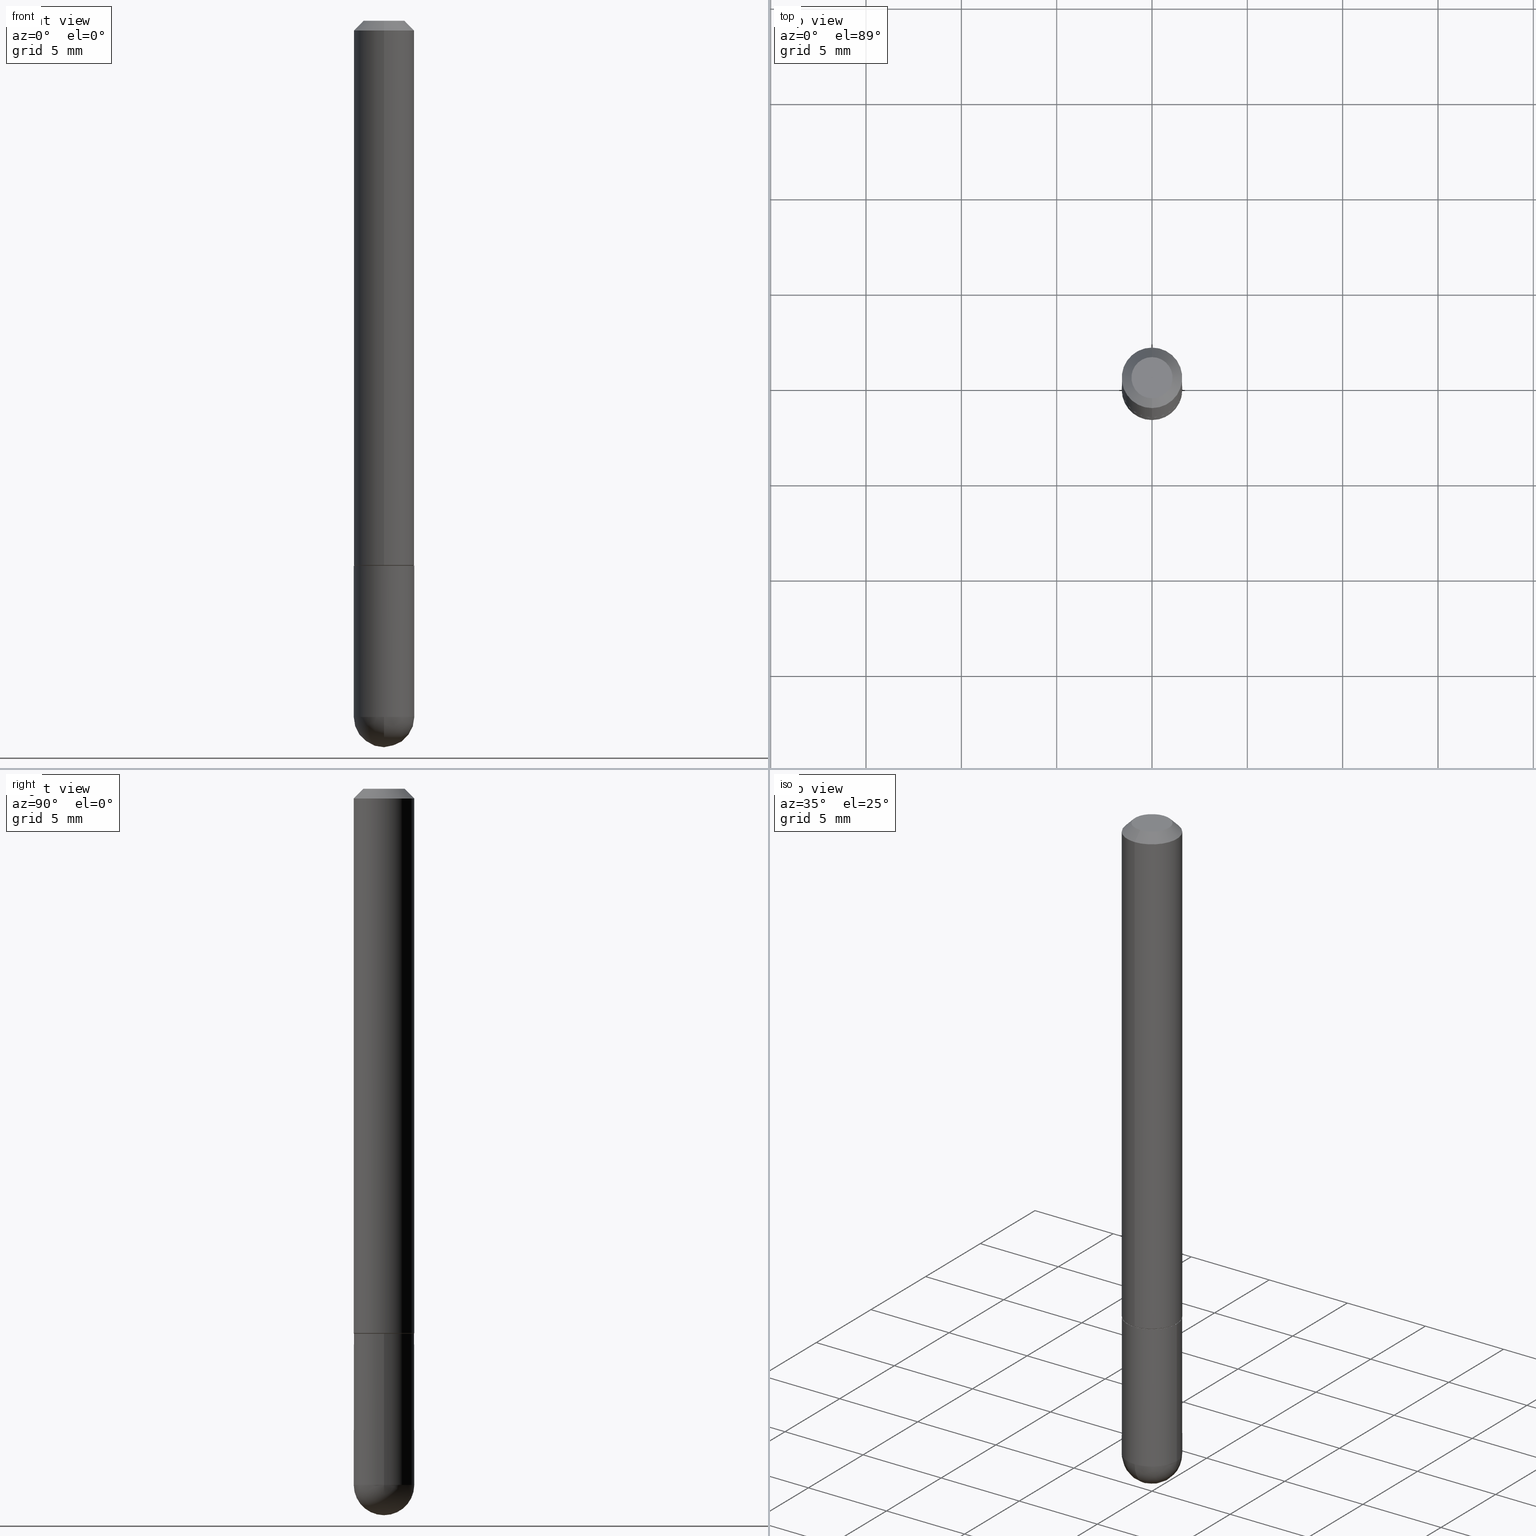
[diagram: canonical four-view strip — front | top / right | iso, engineering-drawing reading convention]
A machine part, canonical four-view strip (front | top / right | iso — engineering-drawing reading convention). The complete STEP part file that produces these views, byte-faithful:
ISO-10303-21;
HEADER;
FILE_DESCRIPTION (( 'STEP AP203' ),
    '1' );
FILE_NAME ('34669.STEP',
    '2024-02-21T18:15:36',
    ( '' ),
    ( '' ),
    'SwSTEP 2.0',
    'SolidWorks 2023',
    '' );
FILE_SCHEMA (( 'CONFIG_CONTROL_DESIGN' ));
ENDSEC;

DATA;
#1 = ADVANCED_FACE ( 'NONE', ( #252 ), #206, .T. ) ;
#2 = ORIENTED_EDGE ( 'NONE', *, *, #289, .T. ) ;
#3 = AXIS2_PLACEMENT_3D ( 'NONE', #267, #389, #45 ) ;
#4 = CC_DESIGN_PERSON_AND_ORGANIZATION_ASSIGNMENT ( #307, #364, ( #95 ) ) ;
#5 = VERTEX_POINT ( 'NONE', #353 ) ;
#6 = ORIENTED_EDGE ( 'NONE', *, *, #407, .F. ) ;
#7 = VERTEX_POINT ( 'NONE', #224 ) ;
#8 = ORIENTED_EDGE ( 'NONE', *, *, #73, .T. ) ;
#9 = AXIS2_PLACEMENT_3D ( 'NONE', #405, #217, #347 ) ;
#10 = CIRCLE ( 'NONE', #246, 0.06250000000000031919 ) ;
#11 = DIRECTION ( 'NONE',  ( -2.445468806185136597E-29, 3.491481338843145583E-15, 1.000000000000000000 ) ) ;
#12 = CARTESIAN_POINT ( 'NONE',  ( 4.931764679516106020E-31, -6.924495993801153083E-17, -0.02000000000000006981 ) ) ;
#13 = DIRECTION ( 'NONE',  ( -2.465882339758044742E-29, 3.462247996900564881E-15, 1.000000000000000000 ) ) ;
#14 = ADVANCED_FACE ( 'NONE', ( #67 ), #28, .T. ) ;
#15 = DIRECTION ( 'NONE',  ( -2.465882339758044742E-29, 3.462247996900564881E-15, 1.000000000000000000 ) ) ;
#16 = DIRECTION ( 'NONE',  ( 1.000000000000000000, 0.000000000000000000, 0.000000000000000000 ) ) ;
#17 = CYLINDRICAL_SURFACE ( 'NONE', #245, 0.06249999999999997918 ) ;
#18 = FACE_OUTER_BOUND ( 'NONE', #355, .T. ) ;
#19 = CC_DESIGN_DATE_AND_TIME_ASSIGNMENT ( #278, #154, ( #82 ) ) ;
#20 = CARTESIAN_POINT ( 'NONE',  ( 0.000000000000000000, 0.000000000000000000, 0.000000000000000000 ) ) ;
#21 = CARTESIAN_POINT ( 'NONE',  ( 0.06249999999999997918, -4.364351673553915708E-16, 3.047610484872459170E-30 ) ) ;
#22 = DIRECTION ( 'NONE',  ( 4.937700262164544887E-15, 0.7071067811865446862, -0.7071067811865503483 ) ) ;
#23 = DIRECTION ( 'NONE',  ( 1.000000000000000000, -6.982962677686269077E-15, 0.000000000000000000 ) ) ;
#24 = DATE_AND_TIME ( #150, #351 ) ;
#25 = EDGE_CURVE ( 'NONE', #256, #46, #409, .T. ) ;
#26 = FACE_OUTER_BOUND ( 'NONE', #259, .T. ) ;
#27 = DATE_AND_TIME ( #92, #213 ) ;
#28 = CONICAL_SURFACE ( 'NONE', #376, 0.06149999999999997830, 0.7853981633974482790 ) ;
#29 = DATE_AND_TIME ( #218, #285 ) ;
#30 = ADVANCED_FACE ( 'NONE', ( #211 ), #17, .T. ) ;
#31 = DIRECTION ( 'NONE',  ( 1.000000000000000000, -6.982962677686268288E-15, 0.000000000000000000 ) ) ;
#32 = CARTESIAN_POINT ( 'NONE',  ( 4.364351673554260835E-16, 0.06249999999999487910, -1.437500000000000444 ) ) ;
#33 = CIRCLE ( 'NONE', #3, 0.06250000000000001388 ) ;
#34 = CARTESIAN_POINT ( 'NONE',  ( 4.931764679516106020E-31, -6.924495993801153083E-17, -0.02000000000000006981 ) ) ;
#35 = EDGE_CURVE ( 'NONE', #293, #195, #161, .T. ) ;
#36 = EDGE_LOOP ( 'NONE', ( #78, #170, #200, #322 ) ) ;
#37 = CC_DESIGN_DATE_AND_TIME_ASSIGNMENT ( #160, #130, ( #383 ) ) ;
#38 = ORIENTED_EDGE ( 'NONE', *, *, #162, .F. ) ;
#39 = VERTEX_POINT ( 'NONE', #344 ) ;
#40 = PRODUCT ( '34669', '34669', '', ( #396 ) ) ;
#41 = AXIS2_PLACEMENT_3D ( 'NONE', #337, #15, #388 ) ;
#42 = ORIENTED_EDGE ( 'NONE', *, *, #385, .T. ) ;
#43 = ORIENTED_EDGE ( 'NONE', *, *, #73, .F. ) ;
#44 = ORIENTED_EDGE ( 'NONE', *, *, #180, .T. ) ;
#45 = DIRECTION ( 'NONE',  ( 1.000000000000000000, -6.982962677686269077E-15, 0.000000000000000000 ) ) ;
#46 = VERTEX_POINT ( 'NONE', #88 ) ;
#47 = CARTESIAN_POINT ( 'NONE',  ( 0.000000000000000000, 0.000000000000000000, 0.000000000000000000 ) ) ;
#48 = AXIS2_PLACEMENT_3D ( 'NONE', #282, #317, #287 ) ;
#49 = CARTESIAN_POINT ( 'NONE',  ( 4.405364961712898701E-16, 0.06149999999999608558, -1.125000000000000666 ) ) ;
#50 = DIRECTION ( 'NONE',  ( -2.445468806185136597E-29, 3.491481338843145583E-15, 1.000000000000000000 ) ) ;
#51 = EDGE_CURVE ( 'NONE', #46, #256, #403, .T. ) ;
#52 = LINE ( 'NONE', #59, #371 ) ;
#53 =( NAMED_UNIT ( * ) PLANE_ANGLE_UNIT ( ) SI_UNIT ( $, .RADIAN. ) );
#54 = DIRECTION ( 'NONE',  ( 1.000000000000000000, -6.982962677686267499E-15, 4.876176775795936353E-29 ) ) ;
#55 = FACE_OUTER_BOUND ( 'NONE', #354, .T. ) ;
#56 = DIRECTION ( 'NONE',  ( -2.445468806185136597E-29, 3.491481338843145583E-15, 1.000000000000000000 ) ) ;
#57 = PERSON_AND_ORGANIZATION ( #99, #121 ) ;
#58 = AXIS2_PLACEMENT_3D ( 'NONE', #279, #209, #85 ) ;
#59 = CARTESIAN_POINT ( 'NONE',  ( 4.364351673553917187E-16, 0.06249999999999988204, -0.02000000000000028491 ) ) ;
#60 = DIRECTION ( 'NONE',  ( -2.465882339758044742E-29, 3.462247996900564881E-15, 1.000000000000000000 ) ) ;
#61 = DIRECTION ( 'NONE',  ( 6.982962677686265922E-15, 1.000000000000000000, -4.370956789862798273E-15 ) ) ;
#62 = CALENDAR_DATE ( 2024, 21, 2 ) ;
#63 = FACE_OUTER_BOUND ( 'NONE', #253, .T. ) ;
#64 = VECTOR ( 'NONE', #240, 39.37007874015748143 ) ;
#65 = CIRCLE ( 'NONE', #301, 0.06249999999999995143 ) ;
#66 = EDGE_CURVE ( 'NONE', #5, #375, #52, .T. ) ;
#67 = FACE_OUTER_BOUND ( 'NONE', #333, .T. ) ;
#68 = ORIENTED_EDGE ( 'NONE', *, *, #298, .F. ) ;
#69 = VERTEX_POINT ( 'NONE', #394 ) ;
#70 = UNCERTAINTY_MEASURE_WITH_UNIT (LENGTH_MEASURE( 1.000000000000000082E-05 ), #237, 'distance_accuracy_value', 'NONE');
#71 = ORIENTED_EDGE ( 'NONE', *, *, #230, .T. ) ;
#72 = ORIENTED_EDGE ( 'NONE', *, *, #385, .F. ) ;
#73 = EDGE_CURVE ( 'NONE', #39, #303, #33, .T. ) ;
#74 = AXIS2_PLACEMENT_3D ( 'NONE', #47, #179, #141 ) ;
#75 = ORIENTED_EDGE ( 'NONE', *, *, #66, .F. ) ;
#76 = ORIENTED_EDGE ( 'NONE', *, *, #51, .T. ) ;
#77 = DIRECTION ( 'NONE',  ( -6.982962677686265922E-15, -1.000000000000000000, 3.462247996900564881E-15 ) ) ;
#78 = ORIENTED_EDGE ( 'NONE', *, *, #230, .F. ) ;
#79 = ADVANCED_FACE ( 'NONE', ( #55 ), #178, .F. ) ;
#80 = VECTOR ( 'NONE', #338, 39.37007874015748143 ) ;
#81 = DIRECTION ( 'NONE',  ( -2.445468806185136597E-29, 3.491481338843145583E-15, 1.000000000000000000 ) ) ;
#82 = PRODUCT_DEFINITION ( 'UNKNOWN', '', #95, #258 ) ;
#83 = CARTESIAN_POINT ( 'NONE',  ( 4.440892098500769143E-16, 0.06249999999999615585, -1.124000000000000554 ) ) ;
#84 = SECURITY_CLASSIFICATION_LEVEL ( 'unclassified' ) ;
#85 = DIRECTION ( 'NONE',  ( 1.000000000000000000, -6.982962677686268288E-15, 0.000000000000000000 ) ) ;
#86 = DIRECTION ( 'NONE',  ( -1.000000000000000000, 6.982962677686265922E-15, -4.883557194083112901E-29 ) ) ;
#87 = CARTESIAN_POINT ( 'NONE',  ( 0.000000000000000000, 0.000000000000000000, 0.000000000000000000 ) ) ;
#88 = CARTESIAN_POINT ( 'NONE',  ( -4.294522046776775027E-16, -0.06150000000000387101, -1.125000000000000222 ) ) ;
#89 = CARTESIAN_POINT ( 'NONE',  ( -0.06249999999999995143, -4.029371255542719745E-15, -1.437500000000000222 ) ) ;
#90 = CLOSED_SHELL ( 'NONE', ( #201, #166, #214, #249, #30 ) ) ;
#91 = DIRECTION ( 'NONE',  ( -1.000000000000000000, 6.982962677686265922E-15, -4.876176775795935793E-29 ) ) ;
#92 = CALENDAR_DATE ( 2024, 21, 2 ) ;
#93 = FACE_OUTER_BOUND ( 'NONE', #167, .T. ) ;
#94 = EDGE_CURVE ( 'NONE', #132, #299, #393, .T. ) ;
#95 = PRODUCT_DEFINITION_FORMATION_WITH_SPECIFIED_SOURCE ( 'ANY', '', #40, .NOT_KNOWN. ) ;
#96 = COORDINATED_UNIVERSAL_TIME_OFFSET ( 5, 0, .BEHIND. ) ;
#97 = PERSON_AND_ORGANIZATION ( #99, #121 ) ;
#98 = EDGE_CURVE ( 'NONE', #199, #39, #272, .T. ) ;
#99 = PERSON ( 'UNSPECIFIED', 'UNSPECIFIED', 'UNSPECIFIED', ('UNSPECIFIED'), ('UNSPECIFIED'), ('UNSPECIFIED') ) ;
#100 = DIRECTION ( 'NONE',  ( 6.982962677686265922E-15, 1.000000000000000000, -3.483106191921938315E-15 ) ) ;
#101 = AXIS2_PLACEMENT_3D ( 'NONE', #146, #367, #143 ) ;
#102 = ORIENTED_EDGE ( 'NONE', *, *, #162, .T. ) ;
#103 = DIMENSIONAL_EXPONENTS ( 1.000000000000000000, 0.000000000000000000, 0.000000000000000000, 0.000000000000000000, 0.000000000000000000, 0.000000000000000000, 0.000000000000000000 ) ;
#104 = ORIENTED_EDGE ( 'NONE', *, *, #25, .T. ) ;
#105 = EDGE_CURVE ( 'NONE', #7, #132, #191, .T. ) ;
#106 = ORIENTED_EDGE ( 'NONE', *, *, #35, .F. ) ;
#107 = ORIENTED_EDGE ( 'NONE', *, *, #180, .F. ) ;
#108 = AXIS2_PLACEMENT_3D ( 'NONE', #316, #309, #91 ) ;
#109 = ORIENTED_EDGE ( 'NONE', *, *, #94, .T. ) ;
#110 = MANIFOLD_SOLID_BREP ( 'Body-Move/Copy2[1]', #90 ) ;
#111 = ORIENTED_EDGE ( 'NONE', *, *, #254, .T. ) ;
#112 = DIRECTION ( 'NONE',  ( 1.000000000000000000, -6.982962677686268288E-15, 0.000000000000000000 ) ) ;
#113 = CARTESIAN_POINT ( 'NONE',  ( 3.184241630977248732E-29, -5.493186792727072638E-15, -1.437500000000000222 ) ) ;
#114 = CARTESIAN_POINT ( 'NONE',  ( -3.653340806039298836E-45, 5.129511527685368926E-31, 1.481555201209547296E-16 ) ) ;
#115 = EDGE_CURVE ( 'NONE', #69, #375, #255, .T. ) ;
#116 = CARTESIAN_POINT ( 'NONE',  ( 2.771651749888043021E-29, -3.891566748516236296E-15, -1.124000000000000332 ) ) ;
#117 = LENGTH_MEASURE_WITH_UNIT ( LENGTH_MEASURE( 0.02539999999999999897 ), #390 );
#118 = CIRCLE ( 'NONE', #350, 0.06249999999999995143 ) ;
#119 = DIRECTION ( 'NONE',  ( -6.982962677686265922E-15, -1.000000000000000000, 3.462247996900564881E-15 ) ) ;
#120 = COORDINATED_UNIVERSAL_TIME_OFFSET ( 5, 0, .BEHIND. ) ;
#121 = ORGANIZATION ( 'UNSPECIFIED', 'UNSPECIFIED', '' ) ;
#122 = LINE ( 'NONE', #399, #260 ) ;
#123 = CARTESIAN_POINT ( 'NONE',  ( 3.515361408891134418E-29, -5.019004424587023131E-15, -1.437500000000000222 ) ) ;
#124 = FACE_OUTER_BOUND ( 'NONE', #225, .T. ) ;
#125 = CARTESIAN_POINT ( 'NONE',  ( 0.06249999999999995143, -4.909895632748173241E-15, -1.437500000000000222 ) ) ;
#126 = SPHERICAL_SURFACE ( 'NONE', #190, 0.06250000000000031919 ) ;
#127 = COORDINATED_UNIVERSAL_TIME_OFFSET ( 5, 0, .BEHIND. ) ;
#128 = AXIS2_PLACEMENT_3D ( 'NONE', #294, #378, #302 ) ;
#129 =( GEOMETRIC_REPRESENTATION_CONTEXT ( 3 ) GLOBAL_UNCERTAINTY_ASSIGNED_CONTEXT ( ( #70 ) ) GLOBAL_UNIT_ASSIGNED_CONTEXT ( ( #237, #53, #348 ) ) REPRESENTATION_CONTEXT ( 'NONE', 'WORKASPACE' ) );
#130 = DATE_TIME_ROLE ( 'classification_date' ) ;
#131 = ORIENTED_EDGE ( 'NONE', *, *, #220, .T. ) ;
#132 = VERTEX_POINT ( 'NONE', #125 ) ;
#133 = CIRCLE ( 'NONE', #9, 0.06250000000000031919 ) ;
#134 = ORIENTED_EDGE ( 'NONE', *, *, #115, .T. ) ;
#135 = ADVANCED_FACE ( 'NONE', ( #173 ), #244, .T. ) ;
#136 = ORIENTED_EDGE ( 'NONE', *, *, #147, .T. ) ;
#137 = EDGE_LOOP ( 'NONE', ( #227, #44, #164, #332, #43 ) ) ;
#138 = ORIENTED_EDGE ( 'NONE', *, *, #115, .F. ) ;
#139 = APPROVAL_PERSON_ORGANIZATION ( #392, #398, #241 ) ;
#140 = EDGE_CURVE ( 'NONE', #195, #69, #205, .T. ) ;
#141 = DIRECTION ( 'NONE',  ( -6.982962677686265922E-15, -1.000000000000000000, 3.462247996900564881E-15 ) ) ;
#142 = DIRECTION ( 'NONE',  ( -6.982962677686265922E-15, -1.000000000000000000, 4.442029257990673709E-15 ) ) ;
#143 = DIRECTION ( 'NONE',  ( 6.982962677686265922E-15, 1.000000000000000000, -4.370956789862798273E-15 ) ) ;
#144 = APPLICATION_PROTOCOL_DEFINITION ( 'international standard', 'config_control_design', 1994, #320 ) ;
#145 = DIRECTION ( 'NONE',  ( -2.445468806185136597E-29, 3.491481338843145583E-15, 1.000000000000000000 ) ) ;
#146 = CARTESIAN_POINT ( 'NONE',  ( 3.184241630977248732E-29, -5.493186792727072638E-15, -1.437500000000000222 ) ) ;
#147 = EDGE_CURVE ( 'NONE', #299, #199, #222, .T. ) ;
#148 = DIRECTION ( 'NONE',  ( -2.465882339758044742E-29, 3.462247996900564881E-15, 1.000000000000000000 ) ) ;
#149 = CARTESIAN_POINT ( 'NONE',  ( -4.287811248607198352E-16, -0.06250000000000001388, -0.01999999999999985123 ) ) ;
#150 = CALENDAR_DATE ( 2024, 21, 2 ) ;
#151 = DIRECTION ( 'NONE',  ( -2.465882339758044742E-29, 3.462247996900564881E-15, 1.000000000000000000 ) ) ;
#152 = CARTESIAN_POINT ( 'NONE',  ( -4.294522046776775027E-16, -0.06150000000000387101, -1.125000000000000222 ) ) ;
#153 = DIRECTION ( 'NONE',  ( 2.465882339758044742E-29, -3.462247996900564881E-15, -1.000000000000000000 ) ) ;
#154 = DATE_TIME_ROLE ( 'creation_date' ) ;
#155 = ADVANCED_FACE ( 'NONE', ( #93 ), #290, .F. ) ;
#156 = CARTESIAN_POINT ( 'NONE',  ( 2.774117632227801036E-29, -3.895028996513137661E-15, -1.125000000000000444 ) ) ;
#157 = PERSON_AND_ORGANIZATION_ROLE ( 'creator' ) ;
#158 = AXIS2_PLACEMENT_3D ( 'NONE', #34, #374, #100 ) ;
#159 = APPROVAL_PERSON_ORGANIZATION ( #239, #215, #281 ) ;
#160 = DATE_AND_TIME ( #193, #292 ) ;
#161 = CIRCLE ( 'NONE', #382, 0.06250000000000005551 ) ;
#162 = EDGE_CURVE ( 'NONE', #358, #299, #133, .T. ) ;
#163 = AXIS2_PLACEMENT_3D ( 'NONE', #386, #11, #23 ) ;
#164 = ORIENTED_EDGE ( 'NONE', *, *, #105, .T. ) ;
#165 = DIRECTION ( 'NONE',  ( -6.982962677686265922E-15, -1.000000000000000000, 4.442029257990673709E-15 ) ) ;
#166 = ADVANCED_FACE ( 'NONE', ( #63 ), #181, .T. ) ;
#167 = EDGE_LOOP ( 'NONE', ( #295, #171 ) ) ;
#168 = VECTOR ( 'NONE', #369, 39.37007874015748143 ) ;
#169 = CIRCLE ( 'NONE', #352, 0.06250000000000005551 ) ;
#170 = ORIENTED_EDGE ( 'NONE', *, *, #35, .T. ) ;
#171 = ORIENTED_EDGE ( 'NONE', *, *, #25, .F. ) ;
#172 = ORIENTED_EDGE ( 'NONE', *, *, #298, .T. ) ;
#173 = FACE_OUTER_BOUND ( 'NONE', #359, .T. ) ;
#174 = AXIS2_PLACEMENT_3D ( 'NONE', #87, #243, #16 ) ;
#175 = CARTESIAN_POINT ( 'NONE',  ( 3.339755826017506129E-29, -5.707577355157435366E-15, -1.500000000000000444 ) ) ;
#176 = CARTESIAN_POINT ( 'NONE',  ( 0.000000000000000000, 0.000000000000000000, 0.000000000000000000 ) ) ;
#177 = APPROVAL_STATUS ( 'not_yet_approved' ) ;
#178 = PLANE ( 'NONE',  #235 ) ;
#179 = DIRECTION ( 'NONE',  ( -2.465882339758044742E-29, 3.462247996900564881E-15, 1.000000000000000000 ) ) ;
#180 = EDGE_CURVE ( 'NONE', #199, #7, #65, .T. ) ;
#181 = SPHERICAL_SURFACE ( 'NONE', #101, 0.06250000000000031919 ) ;
#182 = PERSON_AND_ORGANIZATION ( #99, #121 ) ;
#183 = CARTESIAN_POINT ( 'NONE',  ( 4.931764679516106020E-31, -6.924495993801153083E-17, -0.02000000000000006981 ) ) ;
#184 = CARTESIAN_POINT ( 'NONE',  ( 2.771651749888043021E-29, -3.891566748516236296E-15, -1.124000000000000332 ) ) ;
#185 = DIRECTION ( 'NONE',  ( 1.000000000000000000, -6.982962677686268288E-15, 0.000000000000000000 ) ) ;
#186 = CC_DESIGN_PERSON_AND_ORGANIZATION_ASSIGNMENT ( #270, #157, ( #95 ) ) ;
#187 = CARTESIAN_POINT ( 'NONE',  ( 2.967759138016645800E-16, 0.04249999999999975325, -7.306777980779578081E-17 ) ) ;
#188 = CARTESIAN_POINT ( 'NONE',  ( -4.364351673553642565E-16, -0.06250000000000394129, -1.124000000000000110 ) ) ;
#189 = EDGE_CURVE ( 'NONE', #256, #293, #306, .T. ) ;
#190 = AXIS2_PLACEMENT_3D ( 'NONE', #266, #86, #61 ) ;
#191 = CIRCLE ( 'NONE', #58, 0.06249999999999995143 ) ;
#192 = ORIENTED_EDGE ( 'NONE', *, *, #365, .F. ) ;
#193 = CALENDAR_DATE ( 2024, 21, 2 ) ;
#194 = DIRECTION ( 'NONE',  ( -2.465882339758044742E-29, 3.462247996900564881E-15, 1.000000000000000000 ) ) ;
#195 = VERTEX_POINT ( 'NONE', #188 ) ;
#196 = ORIENTED_EDGE ( 'NONE', *, *, #365, .T. ) ;
#197 = CC_DESIGN_PERSON_AND_ORGANIZATION_ASSIGNMENT ( #208, #373, ( #383 ) ) ;
#198 = CIRCLE ( 'NONE', #163, 0.06250000000000001388 ) ;
#199 = VERTEX_POINT ( 'NONE', #89 ) ;
#200 = ORIENTED_EDGE ( 'NONE', *, *, #140, .T. ) ;
#201 = ADVANCED_FACE ( 'NONE', ( #238 ), #361, .T. ) ;
#202 = CARTESIAN_POINT ( 'NONE',  ( -4.364351673553916201E-16, -0.06250000000000000000, 2.163904998062853051E-16 ) ) ;
#203 = ORIENTED_EDGE ( 'NONE', *, *, #147, .F. ) ;
#204 = FACE_OUTER_BOUND ( 'NONE', #36, .T. ) ;
#205 = LINE ( 'NONE', #202, #80 ) ;
#206 = CONICAL_SURFACE ( 'NONE', #158, 0.06249999999999995143, 0.7853981633974477239 ) ;
#207 = APPROVAL_DATE_TIME ( #27, #215 ) ;
#208 = PERSON_AND_ORGANIZATION ( #99, #121 ) ;
#209 = DIRECTION ( 'NONE',  ( -2.445468806185136597E-29, 3.491481338843145583E-15, 1.000000000000000000 ) ) ;
#210 = FACE_OUTER_BOUND ( 'NONE', #229, .T. ) ;
#211 = FACE_OUTER_BOUND ( 'NONE', #137, .T. ) ;
#212 = AXIS2_PLACEMENT_3D ( 'NONE', #232, #360, #77 ) ;
#213 = LOCAL_TIME ( 13, 15, 36.00000000000000000, #127 ) ;
#214 = ADVANCED_FACE ( 'NONE', ( #124 ), #126, .T. ) ;
#215 = APPROVAL ( #345, 'UNSPECIFIED' ) ;
#216 = APPROVAL_DATE_TIME ( #29, #331 ) ;
#217 = DIRECTION ( 'NONE',  ( 1.000000000000000000, -6.982962677686265922E-15, 4.883557194083112340E-29 ) ) ;
#218 = CALENDAR_DATE ( 2024, 21, 2 ) ;
#219 = CIRCLE ( 'NONE', #41, 0.04249999999999975325 ) ;
#220 = EDGE_CURVE ( 'NONE', #375, #69, #118, .T. ) ;
#221 = COORDINATED_UNIVERSAL_TIME_OFFSET ( 5, 0, .BEHIND. ) ;
#222 = CIRCLE ( 'NONE', #291, 0.06249999999999995143 ) ;
#223 = APPROVAL_PERSON_ORGANIZATION ( #97, #331, #248 ) ;
#224 = CARTESIAN_POINT ( 'NONE',  ( -4.440892098500299770E-16, -0.06250000000000539846, -1.437500000000000000 ) ) ;
#225 = EDGE_LOOP ( 'NONE', ( #6, #102, #261, #321 ) ) ;
#226 = ORIENTED_EDGE ( 'NONE', *, *, #318, .F. ) ;
#227 = ORIENTED_EDGE ( 'NONE', *, *, #98, .F. ) ;
#228 = AXIS2_PLACEMENT_3D ( 'NONE', #363, #13, #142 ) ;
#229 = EDGE_LOOP ( 'NONE', ( #380, #8 ) ) ;
#230 = EDGE_CURVE ( 'NONE', #293, #375, #122, .T. ) ;
#231 = CARTESIAN_POINT ( 'NONE',  ( -3.601761448830040600E-16, -0.04249999999999975325, 2.953010599892278506E-16 ) ) ;
#232 = CARTESIAN_POINT ( 'NONE',  ( 0.000000000000000000, 0.000000000000000000, 0.000000000000000000 ) ) ;
#233 = CARTESIAN_POINT ( 'NONE',  ( 4.931764679516106020E-31, -6.924495993801153083E-17, -0.02000000000000006981 ) ) ;
#234 = EDGE_CURVE ( 'NONE', #132, #303, #340, .T. ) ;
#235 = AXIS2_PLACEMENT_3D ( 'NONE', #187, #397, #308 ) ;
#236 = VECTOR ( 'NONE', #366, 39.37007874015748854 ) ;
#237 =( CONVERSION_BASED_UNIT ( 'INCH', #117 ) LENGTH_UNIT ( ) NAMED_UNIT ( #103 ) );
#238 = FACE_OUTER_BOUND ( 'NONE', #325, .T. ) ;
#239 = PERSON_AND_ORGANIZATION ( #99, #121 ) ;
#240 = DIRECTION ( 'NONE',  ( -2.445468806185136877E-29, 3.491481338843145188E-15, 1.000000000000000000 ) ) ;
#241 = APPROVAL_ROLE ( '' ) ;
#242 = DIRECTION ( 'NONE',  ( -6.982962677686265922E-15, -1.000000000000000000, 3.483106191921938315E-15 ) ) ;
#243 = DIRECTION ( 'NONE',  ( 0.000000000000000000, 0.000000000000000000, 1.000000000000000000 ) ) ;
#244 = CYLINDRICAL_SURFACE ( 'NONE', #212, 0.06250000000000000000 ) ;
#245 = AXIS2_PLACEMENT_3D ( 'NONE', #20, #50, #305 ) ;
#246 = AXIS2_PLACEMENT_3D ( 'NONE', #113, #339, #268 ) ;
#247 = COORDINATED_UNIVERSAL_TIME_OFFSET ( 5, 0, .BEHIND. ) ;
#248 = APPROVAL_ROLE ( '' ) ;
#249 = ADVANCED_FACE ( 'NONE', ( #210 ), #280, .F. ) ;
#250 = CONICAL_SURFACE ( 'NONE', #310, 0.06249999999999995143, 0.7853981633974477239 ) ;
#251 = CC_DESIGN_APPROVAL ( #331, ( #383 ) ) ;
#252 = FACE_OUTER_BOUND ( 'NONE', #263, .T. ) ;
#253 = EDGE_LOOP ( 'NONE', ( #38, #300, #107, #203 ) ) ;
#254 = EDGE_CURVE ( 'NONE', #384, #5, #219, .T. ) ;
#255 = CIRCLE ( 'NONE', #319, 0.06249999999999995143 ) ;
#256 = VERTEX_POINT ( 'NONE', #49 ) ;
#257 = ORIENTED_EDGE ( 'NONE', *, *, #66, .T. ) ;
#258 = DESIGN_CONTEXT ( 'detailed design', #329, 'design' ) ;
#259 = EDGE_LOOP ( 'NONE', ( #76, #412, #72, #192 ) ) ;
#260 = VECTOR ( 'NONE', #304, 39.37007874015748143 ) ;
#261 = ORIENTED_EDGE ( 'NONE', *, *, #94, .F. ) ;
#262 = CC_DESIGN_APPROVAL ( #398, ( #82 ) ) ;
#263 = EDGE_LOOP ( 'NONE', ( #68, #323, #257, #131 ) ) ;
#264 = CARTESIAN_POINT ( 'NONE',  ( 4.364351673553917187E-16, 0.06249999999999988204, -0.02000000000000028491 ) ) ;
#265 = ADVANCED_FACE ( 'NONE', ( #18 ), #250, .T. ) ;
#266 = CARTESIAN_POINT ( 'NONE',  ( 3.184241630977248732E-29, -5.493186792727072638E-15, -1.437500000000000222 ) ) ;
#267 = CARTESIAN_POINT ( 'NONE',  ( 2.751152406958279792E-29, -3.927916506198540013E-15, -1.125000000000000444 ) ) ;
#268 = DIRECTION ( 'NONE',  ( -7.105427357601001859E-15, -1.000000000000000000, 0.000000000000000000 ) ) ;
#269 = DIRECTION ( 'NONE',  ( 6.982962677686265922E-15, 1.000000000000000000, -3.483106191921938315E-15 ) ) ;
#270 = PERSON_AND_ORGANIZATION ( #99, #121 ) ;
#271 = CC_DESIGN_PERSON_AND_ORGANIZATION_ASSIGNMENT ( #57, #286, ( #82 ) ) ;
#272 = LINE ( 'NONE', #314, #64 ) ;
#273 = AXIS2_PLACEMENT_3D ( 'NONE', #123, #145, #112 ) ;
#274 = AXIS2_PLACEMENT_3D ( 'NONE', #114, #391, #119 ) ;
#275 = DIRECTION ( 'NONE',  ( 5.024295867788060812E-15, 0.7071067811865499042, 0.7071067811865450192 ) ) ;
#276 = DIRECTION ( 'NONE',  ( -6.982962677686265133E-15, -1.000000000000000000, 4.370956789862817205E-15 ) ) ;
#277 = CARTESIAN_POINT ( 'NONE',  ( 4.369837824924891195E-16, 0.06149999999999608558, -1.125000000000000666 ) ) ;
#278 = DATE_AND_TIME ( #62, #377 ) ;
#279 = CARTESIAN_POINT ( 'NONE',  ( 3.515361408891134418E-29, -5.019004424587023131E-15, -1.437500000000000222 ) ) ;
#280 = PLANE ( 'NONE',  #108 ) ;
#281 = APPROVAL_ROLE ( '' ) ;
#282 = CARTESIAN_POINT ( 'NONE',  ( 2.774117632227801036E-29, -3.895028996513137661E-15, -1.125000000000000444 ) ) ;
#283 = ADVANCED_BREP_SHAPE_REPRESENTATION ( '34669', ( #110, #372, #174 ), #129 ) ;
#284 = CLOSED_SHELL ( 'NONE', ( #313, #135, #265, #1, #326, #14, #155, #79 ) ) ;
#285 = LOCAL_TIME ( 13, 15, 36.00000000000000000, #221 ) ;
#286 = PERSON_AND_ORGANIZATION_ROLE ( 'creator' ) ;
#287 = DIRECTION ( 'NONE',  ( -6.982962677686265922E-15, -1.000000000000000000, 3.462247996900565276E-15 ) ) ;
#288 = APPROVAL_STATUS ( 'not_yet_approved' ) ;
#289 = EDGE_CURVE ( 'NONE', #5, #384, #356, .T. ) ;
#290 = PLANE ( 'NONE',  #48 ) ;
#291 = AXIS2_PLACEMENT_3D ( 'NONE', #334, #406, #31 ) ;
#292 = LOCAL_TIME ( 13, 15, 36.00000000000000000, #96 ) ;
#293 = VERTEX_POINT ( 'NONE', #83 ) ;
#294 = CARTESIAN_POINT ( 'NONE',  ( 2.774117632227801036E-29, -3.895028996513137661E-15, -1.125000000000000444 ) ) ;
#295 = ORIENTED_EDGE ( 'NONE', *, *, #51, .F. ) ;
#296 = AXIS2_PLACEMENT_3D ( 'NONE', #176, #81, #54 ) ;
#297 = ORIENTED_EDGE ( 'NONE', *, *, #189, .F. ) ;
#298 = EDGE_CURVE ( 'NONE', #384, #69, #343, .T. ) ;
#299 = VERTEX_POINT ( 'NONE', #32 ) ;
#300 = ORIENTED_EDGE ( 'NONE', *, *, #407, .T. ) ;
#301 = AXIS2_PLACEMENT_3D ( 'NONE', #401, #56, #185 ) ;
#302 = DIRECTION ( 'NONE',  ( -6.982962677686265922E-15, -1.000000000000000000, 4.442029257990673709E-15 ) ) ;
#303 = VERTEX_POINT ( 'NONE', #410 ) ;
#304 = DIRECTION ( 'NONE',  ( -2.465882339758044462E-29, 3.462247996900565276E-15, 1.000000000000000000 ) ) ;
#305 = DIRECTION ( 'NONE',  ( 1.000000000000000000, -6.982962677686267499E-15, 4.876176775795936353E-29 ) ) ;
#306 = LINE ( 'NONE', #277, #362 ) ;
#307 = PERSON_AND_ORGANIZATION ( #99, #121 ) ;
#308 = DIRECTION ( 'NONE',  ( 6.982962677686265922E-15, 1.000000000000000000, -3.462247996900565276E-15 ) ) ;
#309 = DIRECTION ( 'NONE',  ( 2.438088387897960049E-29, -3.491481338843145188E-15, -1.000000000000000000 ) ) ;
#310 = AXIS2_PLACEMENT_3D ( 'NONE', #12, #153, #269 ) ;
#311 = DIRECTION ( 'NONE',  ( -2.465882339758044742E-29, 3.462247996900564881E-15, 1.000000000000000000 ) ) ;
#312 = APPLICATION_PROTOCOL_DEFINITION ( 'international standard', 'config_control_design', 1994, #329 ) ;
#313 = ADVANCED_FACE ( 'NONE', ( #26 ), #357, .T. ) ;
#314 = CARTESIAN_POINT ( 'NONE',  ( -0.06249999999999997918, 4.440892098500624683E-16, -3.074334431409315413E-30 ) ) ;
#315 = DIRECTION ( 'NONE',  ( -6.982962677686265922E-15, -1.000000000000000000, 4.442029257990673709E-15 ) ) ;
#316 = CARTESIAN_POINT ( 'NONE',  ( 4.364351673554192795E-16, 0.06249999999999608646, -1.125000000000000666 ) ) ;
#317 = DIRECTION ( 'NONE',  ( -2.465882339758044182E-29, 3.462247996900565276E-15, 1.000000000000000000 ) ) ;
#318 = EDGE_CURVE ( 'NONE', #303, #39, #198, .T. ) ;
#319 = AXIS2_PLACEMENT_3D ( 'NONE', #183, #151, #400 ) ;
#320 = APPLICATION_CONTEXT ( 'configuration controlled 3d designs of mechanical parts and assemblies' ) ;
#321 = ORIENTED_EDGE ( 'NONE', *, *, #105, .F. ) ;
#322 = ORIENTED_EDGE ( 'NONE', *, *, #220, .F. ) ;
#323 = ORIENTED_EDGE ( 'NONE', *, *, #289, .F. ) ;
#324 = CARTESIAN_POINT ( 'NONE',  ( 2.774117632227801036E-29, -3.895028996513137661E-15, -1.125000000000000444 ) ) ;
#325 = EDGE_LOOP ( 'NONE', ( #136, #335, #226, #379, #109 ) ) ;
#326 = ADVANCED_FACE ( 'NONE', ( #204 ), #336, .T. ) ;
#327 = VECTOR ( 'NONE', #368, 39.37007874015748143 ) ;
#328 = CC_DESIGN_APPROVAL ( #215, ( #95 ) ) ;
#329 = APPLICATION_CONTEXT ( 'configuration controlled 3d designs of mechanical parts and assemblies' ) ;
#330 = ORIENTED_EDGE ( 'NONE', *, *, #254, .F. ) ;
#331 = APPROVAL ( #288, 'UNSPECIFIED' ) ;
#332 = ORIENTED_EDGE ( 'NONE', *, *, #234, .T. ) ;
#333 = EDGE_LOOP ( 'NONE', ( #297, #104, #196, #106 ) ) ;
#334 = CARTESIAN_POINT ( 'NONE',  ( 3.515361408891134418E-29, -5.019004424587023131E-15, -1.437500000000000222 ) ) ;
#335 = ORIENTED_EDGE ( 'NONE', *, *, #98, .T. ) ;
#336 = CYLINDRICAL_SURFACE ( 'NONE', #74, 0.06250000000000000000 ) ;
#337 = CARTESIAN_POINT ( 'NONE',  ( -3.653340806039298836E-45, 5.129511527685368926E-31, 1.481555201209547296E-16 ) ) ;
#338 = DIRECTION ( 'NONE',  ( -2.465882339758044462E-29, 3.462247996900565276E-15, 1.000000000000000000 ) ) ;
#339 = DIRECTION ( 'NONE',  ( -1.000000000000000000, 7.105427357601001070E-15, -4.926315508542082329E-29 ) ) ;
#340 = LINE ( 'NONE', #21, #168 ) ;
#341 = DIRECTION ( 'NONE',  ( -2.465882339758044742E-29, 3.462247996900564881E-15, 1.000000000000000000 ) ) ;
#342 = DIRECTION ( 'NONE',  ( -6.982962677686265133E-15, -1.000000000000000000, 4.370956789862817205E-15 ) ) ;
#343 = LINE ( 'NONE', #149, #327 ) ;
#344 = CARTESIAN_POINT ( 'NONE',  ( -0.06250000000000001388, -4.029371255542719745E-15, -1.125000000000000444 ) ) ;
#345 = APPROVAL_STATUS ( 'not_yet_approved' ) ;
#346 = CC_DESIGN_PERSON_AND_ORGANIZATION_ASSIGNMENT ( #182, #370, ( #40 ) ) ;
#347 = DIRECTION ( 'NONE',  ( 6.982962677686265922E-15, 1.000000000000000000, 0.000000000000000000 ) ) ;
#348 =( NAMED_UNIT ( * ) SI_UNIT ( $, .STERADIAN. ) SOLID_ANGLE_UNIT ( ) );
#350 = AXIS2_PLACEMENT_3D ( 'NONE', #233, #311, #242 ) ;
#349 = PRODUCT_RELATED_PRODUCT_CATEGORY ( 'detail', '', ( #40 ) ) ;
#351 = LOCAL_TIME ( 13, 15, 36.00000000000000000, #247 ) ;
#352 = AXIS2_PLACEMENT_3D ( 'NONE', #184, #341, #342 ) ;
#353 = CARTESIAN_POINT ( 'NONE',  ( 3.666055405785281740E-16, 0.04249999999999975325, 1.009980252681581685E-18 ) ) ;
#354 = EDGE_LOOP ( 'NONE', ( #2, #111 ) ) ;
#355 = EDGE_LOOP ( 'NONE', ( #330, #172, #134, #75 ) ) ;
#356 = CIRCLE ( 'NONE', #274, 0.04249999999999975325 ) ;
#357 = CONICAL_SURFACE ( 'NONE', #404, 0.06149999999999997830, 0.7853981633974482790 ) ;
#358 = VERTEX_POINT ( 'NONE', #175 ) ;
#359 = EDGE_LOOP ( 'NONE', ( #42, #71, #138, #381 ) ) ;
#360 = DIRECTION ( 'NONE',  ( -2.465882339758044742E-29, 3.462247996900564881E-15, 1.000000000000000000 ) ) ;
#361 = CYLINDRICAL_SURFACE ( 'NONE', #296, 0.06249999999999997918 ) ;
#362 = VECTOR ( 'NONE', #275, 39.37007874015748854 ) ;
#363 = CARTESIAN_POINT ( 'NONE',  ( 2.774117632227801036E-29, -3.895028996513137661E-15, -1.125000000000000444 ) ) ;
#364 = PERSON_AND_ORGANIZATION_ROLE ( 'design_supplier' ) ;
#365 = EDGE_CURVE ( 'NONE', #46, #195, #387, .T. ) ;
#366 = DIRECTION ( 'NONE',  ( -4.937700262164547253E-15, -0.7071067811865450192, 0.7071067811865499042 ) ) ;
#367 = DIRECTION ( 'NONE',  ( -1.000000000000000000, 6.982962677686265922E-15, -4.883557194083112901E-29 ) ) ;
#368 = DIRECTION ( 'NONE',  ( -4.851104656540961119E-15, -0.7071067811865495711, -0.7071067811865454633 ) ) ;
#369 = DIRECTION ( 'NONE',  ( -2.445468806185136877E-29, 3.491481338843145188E-15, 1.000000000000000000 ) ) ;
#370 = PERSON_AND_ORGANIZATION_ROLE ( 'design_owner' ) ;
#371 = VECTOR ( 'NONE', #22, 39.37007874015748143 ) ;
#372 = MANIFOLD_SOLID_BREP ( 'Body-Move/Copy2[2]', #284 ) ;
#373 = PERSON_AND_ORGANIZATION_ROLE ( 'classification_officer' ) ;
#374 = DIRECTION ( 'NONE',  ( 2.465882339758044742E-29, -3.462247996900564881E-15, -1.000000000000000000 ) ) ;
#375 = VERTEX_POINT ( 'NONE', #264 ) ;
#376 = AXIS2_PLACEMENT_3D ( 'NONE', #324, #194, #165 ) ;
#377 = LOCAL_TIME ( 13, 15, 36.00000000000000000, #120 ) ;
#378 = DIRECTION ( 'NONE',  ( -2.465882339758044742E-29, 3.462247996900564881E-15, 1.000000000000000000 ) ) ;
#379 = ORIENTED_EDGE ( 'NONE', *, *, #234, .F. ) ;
#380 = ORIENTED_EDGE ( 'NONE', *, *, #318, .T. ) ;
#381 = ORIENTED_EDGE ( 'NONE', *, *, #140, .F. ) ;
#382 = AXIS2_PLACEMENT_3D ( 'NONE', #116, #148, #276 ) ;
#383 = SECURITY_CLASSIFICATION ( '', '', #84 ) ;
#384 = VERTEX_POINT ( 'NONE', #231 ) ;
#385 = EDGE_CURVE ( 'NONE', #195, #293, #169, .T. ) ;
#386 = CARTESIAN_POINT ( 'NONE',  ( 2.751152406958279792E-29, -3.927916506198540013E-15, -1.125000000000000444 ) ) ;
#387 = LINE ( 'NONE', #152, #236 ) ;
#388 = DIRECTION ( 'NONE',  ( -6.982962677686265922E-15, -1.000000000000000000, 3.462247996900564881E-15 ) ) ;
#389 = DIRECTION ( 'NONE',  ( -2.445468806185136597E-29, 3.491481338843145583E-15, 1.000000000000000000 ) ) ;
#390 =( LENGTH_UNIT ( ) NAMED_UNIT ( * ) SI_UNIT ( $, .METRE. ) );
#391 = DIRECTION ( 'NONE',  ( -2.465882339758044742E-29, 3.462247996900564881E-15, 1.000000000000000000 ) ) ;
#392 = PERSON_AND_ORGANIZATION ( #99, #121 ) ;
#393 = CIRCLE ( 'NONE', #273, 0.06249999999999995143 ) ;
#394 = CARTESIAN_POINT ( 'NONE',  ( -4.287811248607198352E-16, -0.06250000000000001388, -0.01999999999999985123 ) ) ;
#395 = CC_DESIGN_SECURITY_CLASSIFICATION ( #383, ( #95 ) ) ;
#396 = MECHANICAL_CONTEXT ( 'NONE', #320, 'mechanical' ) ;
#397 = DIRECTION ( 'NONE',  ( 2.465882339758044182E-29, -3.462247996900565276E-15, -1.000000000000000000 ) ) ;
#398 = APPROVAL ( #177, 'UNSPECIFIED' ) ;
#399 = CARTESIAN_POINT ( 'NONE',  ( 4.440892098500625669E-16, 0.06250000000000000000, -2.163904998062853051E-16 ) ) ;
#400 = DIRECTION ( 'NONE',  ( -6.982962677686265922E-15, -1.000000000000000000, 3.483106191921938315E-15 ) ) ;
#401 = CARTESIAN_POINT ( 'NONE',  ( 3.515361408891134418E-29, -5.019004424587023131E-15, -1.437500000000000222 ) ) ;
#402 = APPROVAL_DATE_TIME ( #24, #398 ) ;
#403 = CIRCLE ( 'NONE', #228, 0.06149999999999997830 ) ;
#404 = AXIS2_PLACEMENT_3D ( 'NONE', #156, #60, #315 ) ;
#405 = CARTESIAN_POINT ( 'NONE',  ( 3.184241630977248732E-29, -5.493186792727072638E-15, -1.437500000000000222 ) ) ;
#406 = DIRECTION ( 'NONE',  ( -2.445468806185136597E-29, 3.491481338843145583E-15, 1.000000000000000000 ) ) ;
#407 = EDGE_CURVE ( 'NONE', #358, #7, #10, .T. ) ;
#408 = PRODUCT_DEFINITION_SHAPE ( 'NONE', 'NONE',  #82 ) ;
#409 = CIRCLE ( 'NONE', #128, 0.06149999999999997830 ) ;
#410 = CARTESIAN_POINT ( 'NONE',  ( 0.06250000000000001388, -4.364351673553932471E-15, -1.125000000000000444 ) ) ;
#411 = SHAPE_DEFINITION_REPRESENTATION ( #408, #283 ) ;
#412 = ORIENTED_EDGE ( 'NONE', *, *, #189, .T. ) ;
ENDSEC;
END-ISO-10303-21;
